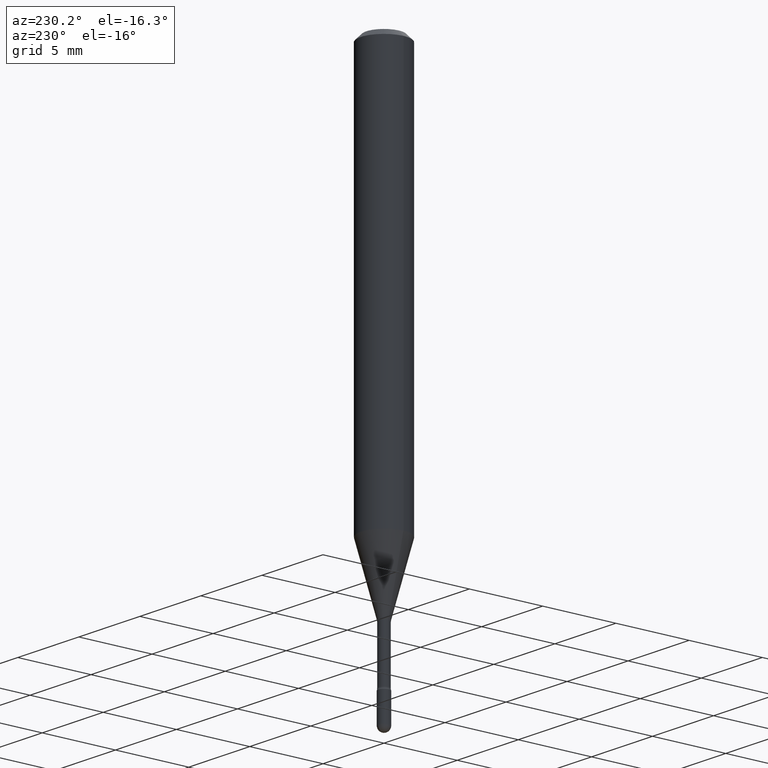
[diagram: clean part render]
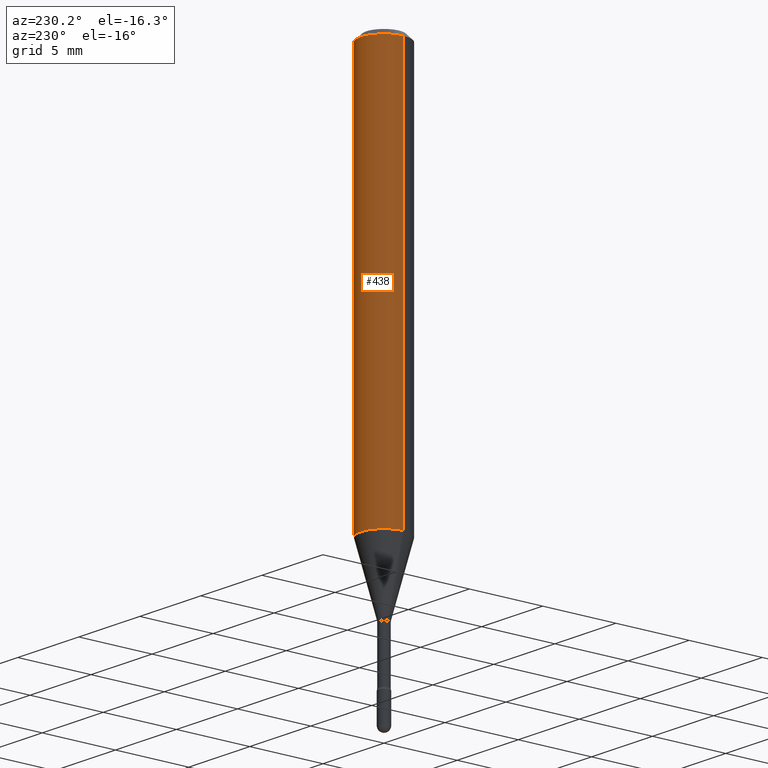
[diagram: same view with one face highlighted and labeled with its STEP entity id]
A machine part, auxiliary view. The second image highlights one B-rep face of the part: STEP entity #438.
In plain terms, the highlighted cylindrical surface (edge-blend (fillet) strip) has radius 1.5875 mm, axis along (-0, 0, 1).
Its self-contained STEP definition (entity closure, byte-faithful):
#4 = DIRECTION ( 'NONE',  ( -2.445468806185136877E-29, 3.491481338843145188E-15, 1.000000000000000000 ) ) ;
#9 = DIRECTION ( 'NONE',  ( 1.000000000000000000, -6.982962677686262766E-15, 0.000000000000000000 ) ) ;
#10 = EDGE_LOOP ( 'NONE', ( #522, #309, #144, #277 ) ) ;
#21 = AXIS2_PLACEMENT_3D ( 'NONE', #134, #126, #9 ) ;
#38 = AXIS2_PLACEMENT_3D ( 'NONE', #310, #261, #174 ) ;
#59 = CARTESIAN_POINT ( 'NONE',  ( 0.06250000000000000000, -4.888073874380391431E-16, -0.01500000000000008271 ) ) ;
#60 = CARTESIAN_POINT ( 'NONE',  ( -1.169113584055446105E-44, 1.669184350826100908E-30, 4.780733988912460139E-16 ) ) ;
#61 = CARTESIAN_POINT ( 'NONE',  ( -0.06250000000000000000, 4.440892098500642925E-16, 4.780733988912429571E-16 ) ) ;
#93 = CARTESIAN_POINT ( 'NONE',  ( 0.06250000000000000000, -4.364351673553899931E-16, 4.780733988912490708E-16 ) ) ;
#99 = EDGE_CURVE ( 'NONE', #270, #519, #388, .T. ) ;
#126 = DIRECTION ( 'NONE',  ( -2.445468806185136597E-29, 3.491481338843145583E-15, 1.000000000000000000 ) ) ;
#134 = CARTESIAN_POINT ( 'NONE',  ( 2.639562586275698746E-29, -3.768595816630689586E-15, -1.079368740913666747 ) ) ;
#141 = FACE_OUTER_BOUND ( 'NONE', #10, .T. ) ;
#144 = ORIENTED_EDGE ( 'NONE', *, *, #255, .F. ) ;
#148 = CYLINDRICAL_SURFACE ( 'NONE', #492, 0.06250000000000000000 ) ;
#151 = DIRECTION ( 'NONE',  ( -2.445468806185136877E-29, 3.491481338843145188E-15, 1.000000000000000000 ) ) ;
#161 = CARTESIAN_POINT ( 'NONE',  ( -0.06250000000000001388, -3.324506606780626970E-15, -1.079368740913666747 ) ) ;
#174 = DIRECTION ( 'NONE',  ( 1.000000000000000000, -6.982962677686266711E-15, 0.000000000000000000 ) ) ;
#236 = VECTOR ( 'NONE', #151, 39.37007874015748143 ) ;
#255 = EDGE_CURVE ( 'NONE', #519, #564, #284, .T. ) ;
#261 = DIRECTION ( 'NONE',  ( -2.445468806185136597E-29, 3.491481338843145583E-15, 1.000000000000000000 ) ) ;
#263 = CARTESIAN_POINT ( 'NONE',  ( 0.06250000000000001388, -4.205030983986081256E-15, -1.079368740913666747 ) ) ;
#270 = VERTEX_POINT ( 'NONE', #263 ) ;
#277 = ORIENTED_EDGE ( 'NONE', *, *, #99, .F. ) ;
#284 = CIRCLE ( 'NONE', #38, 0.06250000000000000000 ) ;
#292 = CIRCLE ( 'NONE', #21, 0.06250000000000000000 ) ;
#309 = ORIENTED_EDGE ( 'NONE', *, *, #367, .T. ) ;
#310 = CARTESIAN_POINT ( 'NONE',  ( 3.668203209277725232E-31, -5.237222008264747365E-17, -0.01500000000000008271 ) ) ;
#315 = DIRECTION ( 'NONE',  ( -2.445468806185136597E-29, 3.491481338843145583E-15, 1.000000000000000000 ) ) ;
#319 = LINE ( 'NONE', #61, #236 ) ;
#337 = VERTEX_POINT ( 'NONE', #161 ) ;
#367 = EDGE_CURVE ( 'NONE', #337, #564, #319, .T. ) ;
#371 = CARTESIAN_POINT ( 'NONE',  ( -0.06250000000000000000, -1.466394808506606111E-15, -0.01500000000000008271 ) ) ;
#388 = LINE ( 'NONE', #93, #544 ) ;
#390 = EDGE_CURVE ( 'NONE', #270, #337, #292, .T. ) ;
#438 = ADVANCED_FACE ( 'NONE', ( #141 ), #148, .T. ) ;
#492 = AXIS2_PLACEMENT_3D ( 'NONE', #60, #315, #497 ) ;
#497 = DIRECTION ( 'NONE',  ( 1.000000000000000000, -6.982962677686266711E-15, 4.852736867747366207E-29 ) ) ;
#519 = VERTEX_POINT ( 'NONE', #59 ) ;
#522 = ORIENTED_EDGE ( 'NONE', *, *, #390, .T. ) ;
#544 = VECTOR ( 'NONE', #4, 39.37007874015748143 ) ;
#564 = VERTEX_POINT ( 'NONE', #371 ) ;